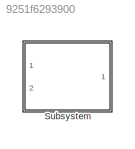
MODEL slx_9251f6293900
KIND model
CONFIG AbsTol = auto
CONFIG EnableMultiTasking = off
CONFIG FixedStep = auto
CONFIG MaxStep = auto
CONFIG MinStep = auto
CONFIG RelTol = 1e-3
CONFIG SampleTimeConstraint = Unconstrained
CONFIG Solver = VariableStepAuto
CONFIG SolverName = VariableStepAuto
CONFIG StartTime = 0.0
CONFIG StopTime = 10.0
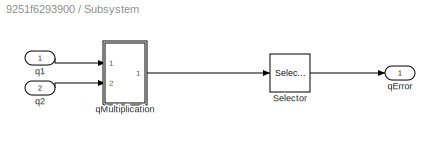
BLOCK [SubSystem] Subsystem
  Ports = [2, 1]
  RequestExecContextInheritance = off
BLOCK [Selector] Subsystem/Selector
  IndexOptions = Index vector (dialog)
  Indices = [1:3]
  InputPortWidth = 4
  OutputSizes = 1
  Ports = [1, 1]
BLOCK [Inport] Subsystem/q1
  IconDisplay = Port number
BLOCK [Inport] Subsystem/q2
  IconDisplay = Port number
  Port = 2
BLOCK [Outport] Subsystem/qError
  IconDisplay = Port number
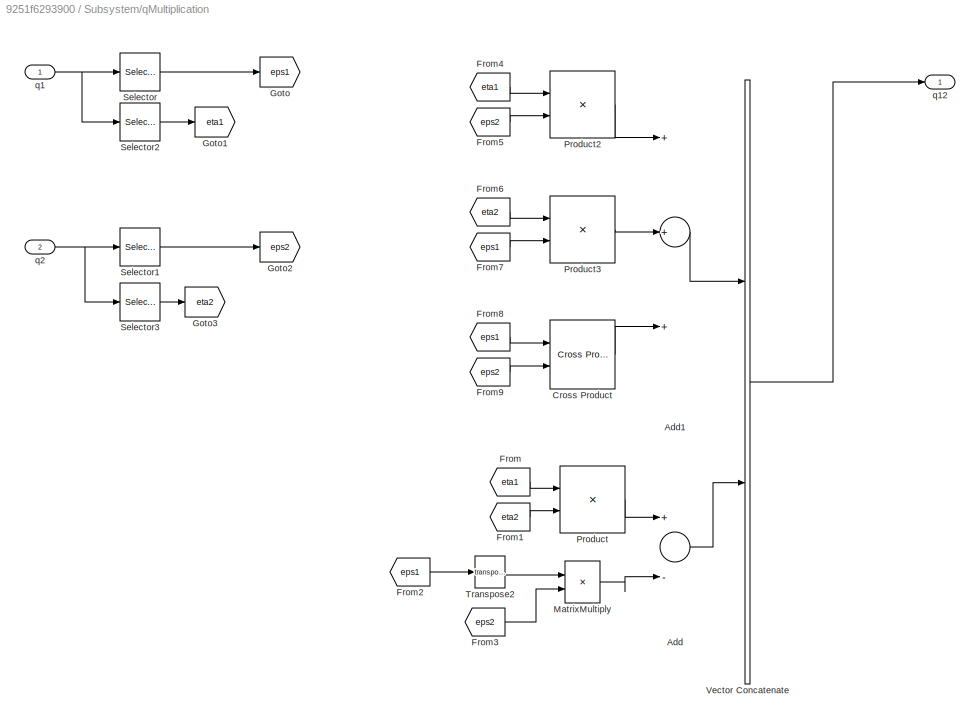
BLOCK [SubSystem] Subsystem/qMultiplication
  Ports = [2, 1]
  RequestExecContextInheritance = off
BLOCK [Sum] Subsystem/qMultiplication/Add
  InputSameDT = off
  Inputs = +-
  OutDataTypeStr = Inherit: Inherit via internal rule
  Ports = [2, 1]
  SaturateOnIntegerOverflow = off
BLOCK [Sum] Subsystem/qMultiplication/Add1
  InputSameDT = off
  Inputs = +++
  OutDataTypeStr = Inherit: Inherit via internal rule
  Ports = [3, 1]
  SaturateOnIntegerOverflow = off
BLOCK [Reference] Subsystem/qMultiplication/Cross Product  REF=vrlib/Utilities/Cross Product
  Ports = [2, 1]
  SourceBlock = vrlib/Utilities/Cross Product
  SourceProductBaseCode = VR
  SourceProductName = Simulink 3D Animation
  SourceType = Cross Product
BLOCK [From] Subsystem/qMultiplication/From
  GotoTag = eta1
BLOCK [From] Subsystem/qMultiplication/From1
  GotoTag = eta2
BLOCK [From] Subsystem/qMultiplication/From2
  GotoTag = eps1
BLOCK [From] Subsystem/qMultiplication/From3
  GotoTag = eps2
BLOCK [From] Subsystem/qMultiplication/From4
  GotoTag = eta1
BLOCK [From] Subsystem/qMultiplication/From5
  GotoTag = eps2
BLOCK [From] Subsystem/qMultiplication/From6
  GotoTag = eta2
BLOCK [From] Subsystem/qMultiplication/From7
  GotoTag = eps1
BLOCK [From] Subsystem/qMultiplication/From8
  GotoTag = eps1
BLOCK [From] Subsystem/qMultiplication/From9
  GotoTag = eps2
BLOCK [Goto] Subsystem/qMultiplication/Goto
  GotoTag = eps1
BLOCK [Goto] Subsystem/qMultiplication/Goto1
  GotoTag = eta1
BLOCK [Goto] Subsystem/qMultiplication/Goto2
  GotoTag = eps2
BLOCK [Goto] Subsystem/qMultiplication/Goto3
  GotoTag = eta2
BLOCK [Product] Subsystem/qMultiplication/MatrixMultiply
  InputSameDT = off
  Multiplication = Matrix(*)
  OutDataTypeStr = Inherit: Inherit via internal rule
  Ports = [2, 1]
  RndMeth = Floor
  SaturateOnIntegerOverflow = off
BLOCK [Product] Subsystem/qMultiplication/Product
  InputSameDT = off
  OutDataTypeStr = Inherit: Inherit via internal rule
  Ports = [2, 1]
  RndMeth = Floor
  SaturateOnIntegerOverflow = off
BLOCK [Product] Subsystem/qMultiplication/Product2
  InputSameDT = off
  OutDataTypeStr = Inherit: Inherit via internal rule
  Ports = [2, 1]
  RndMeth = Floor
  SaturateOnIntegerOverflow = off
BLOCK [Product] Subsystem/qMultiplication/Product3
  InputSameDT = off
  OutDataTypeStr = Inherit: Inherit via internal rule
  Ports = [2, 1]
  RndMeth = Floor
  SaturateOnIntegerOverflow = off
BLOCK [Selector] Subsystem/qMultiplication/Selector
  IndexOptions = Index vector (dialog)
  Indices = [1:3]
  InputPortWidth = 4
  OutputSizes = 1
  Ports = [1, 1]
BLOCK [Selector] Subsystem/qMultiplication/Selector1
  IndexOptions = Index vector (dialog)
  Indices = [1:3]
  InputPortWidth = 4
  OutputSizes = 1
  Ports = [1, 1]
BLOCK [Selector] Subsystem/qMultiplication/Selector2
  IndexOptions = Index vector (dialog)
  Indices = 4
  InputPortWidth = 4
  OutputSizes = 1
  Ports = [1, 1]
BLOCK [Selector] Subsystem/qMultiplication/Selector3
  IndexOptions = Index vector (dialog)
  Indices = 4
  InputPortWidth = 4
  OutputSizes = 1
  Ports = [1, 1]
BLOCK [Math] Subsystem/qMultiplication/Transpose2
  Operator = transpose
  Ports = [1, 1]
BLOCK [Concatenate] Subsystem/qMultiplication/Vector Concatenate
  Ports = [2, 1]
BLOCK [Inport] Subsystem/qMultiplication/q1
  IconDisplay = Port number
BLOCK [Outport] Subsystem/qMultiplication/q12
  IconDisplay = Port number
BLOCK [Inport] Subsystem/qMultiplication/q2
  IconDisplay = Port number
  Port = 2
LINE Subsystem/Selector:1 -> Subsystem/qError:1
LINE Subsystem/q1:1 -> Subsystem/qMultiplication:1
LINE Subsystem/q2:1 -> Subsystem/qMultiplication:2
LINE Subsystem/qMultiplication/Add1:1 -> Subsystem/qMultiplication/Vector Concatenate:1
LINE Subsystem/qMultiplication/Add:1 -> Subsystem/qMultiplication/Vector Concatenate:2
LINE Subsystem/qMultiplication/Cross Product:1 -> Subsystem/qMultiplication/Add1:3
LINE Subsystem/qMultiplication/From1:1 -> Subsystem/qMultiplication/Product:2
LINE Subsystem/qMultiplication/From2:1 -> Subsystem/qMultiplication/Transpose2:1
LINE Subsystem/qMultiplication/From3:1 -> Subsystem/qMultiplication/MatrixMultiply:2
LINE Subsystem/qMultiplication/From4:1 -> Subsystem/qMultiplication/Product2:1
LINE Subsystem/qMultiplication/From5:1 -> Subsystem/qMultiplication/Product2:2
LINE Subsystem/qMultiplication/From6:1 -> Subsystem/qMultiplication/Product3:1
LINE Subsystem/qMultiplication/From7:1 -> Subsystem/qMultiplication/Product3:2
LINE Subsystem/qMultiplication/From8:1 -> Subsystem/qMultiplication/Cross Product:1
LINE Subsystem/qMultiplication/From9:1 -> Subsystem/qMultiplication/Cross Product:2
LINE Subsystem/qMultiplication/From:1 -> Subsystem/qMultiplication/Product:1
LINE Subsystem/qMultiplication/MatrixMultiply:1 -> Subsystem/qMultiplication/Add:2
LINE Subsystem/qMultiplication/Product2:1 -> Subsystem/qMultiplication/Add1:1
LINE Subsystem/qMultiplication/Product3:1 -> Subsystem/qMultiplication/Add1:2
LINE Subsystem/qMultiplication/Product:1 -> Subsystem/qMultiplication/Add:1
LINE Subsystem/qMultiplication/Selector1:1 -> Subsystem/qMultiplication/Goto2:1
LINE Subsystem/qMultiplication/Selector2:1 -> Subsystem/qMultiplication/Goto1:1
LINE Subsystem/qMultiplication/Selector3:1 -> Subsystem/qMultiplication/Goto3:1
LINE Subsystem/qMultiplication/Selector:1 -> Subsystem/qMultiplication/Goto:1
LINE Subsystem/qMultiplication/Transpose2:1 -> Subsystem/qMultiplication/MatrixMultiply:1
LINE Subsystem/qMultiplication/Vector Concatenate:1 -> Subsystem/qMultiplication/q12:1
NET Subsystem/qMultiplication/q1:1 -> Subsystem/qMultiplication/Selector2:1, Subsystem/qMultiplication/Selector:1
NET Subsystem/qMultiplication/q2:1 -> Subsystem/qMultiplication/Selector1:1, Subsystem/qMultiplication/Selector3:1
LINE Subsystem/qMultiplication:1 -> Subsystem/Selector:1
note: NET lines group one-source signal fan-out (src -> all destinations, sorted); 1:1 wires keep LINE
